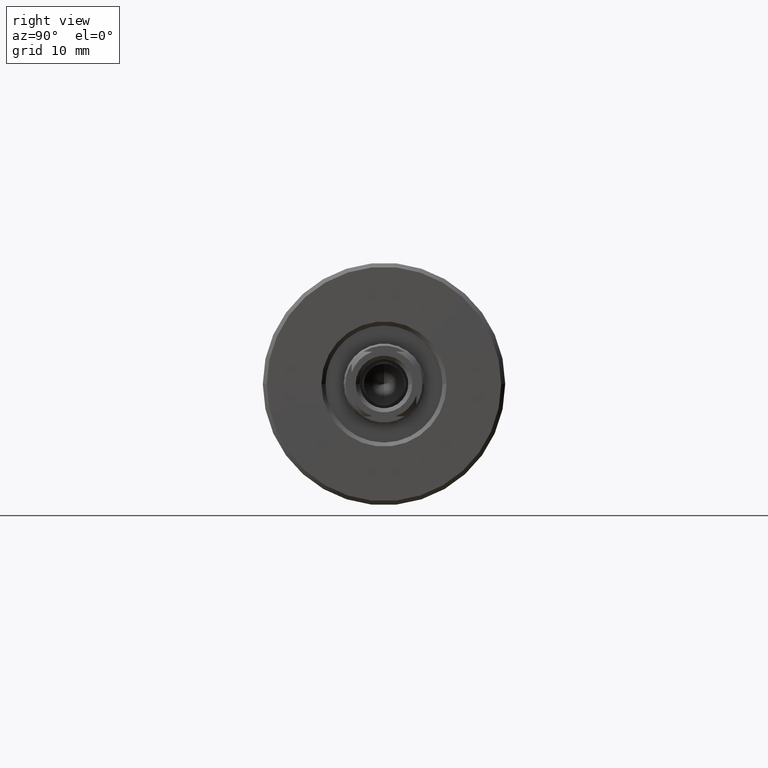
[diagram: clean part render]
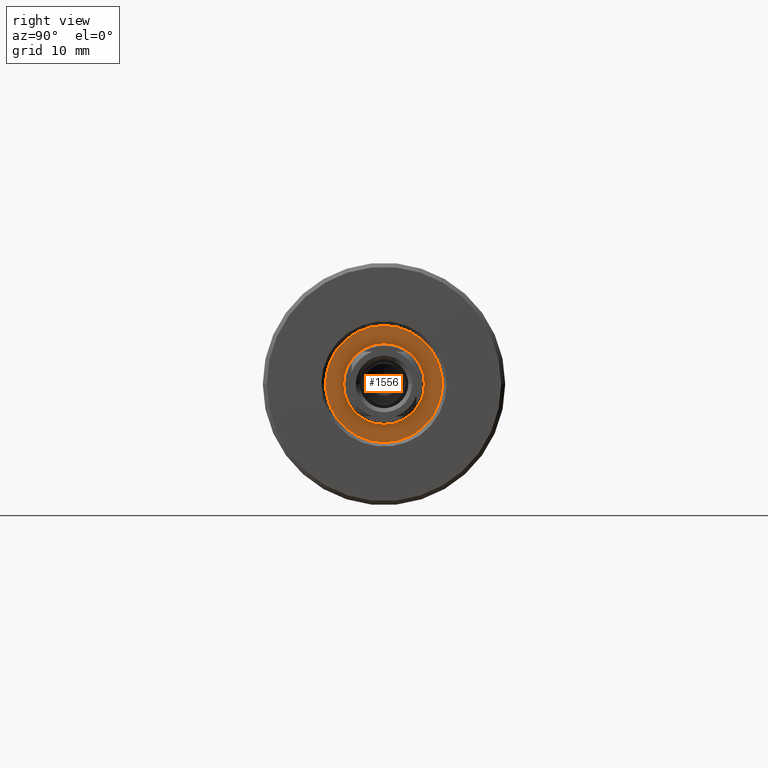
[diagram: same view with one face highlighted and labeled with its STEP entity id]
A machine part, right view. The second image highlights one B-rep face of the part: STEP entity #1556.
In plain terms, the highlighted planar face has unit normal (1, 0, 0).
Its self-contained STEP definition (entity closure, byte-faithful):
#100 = ORIENTED_EDGE ( 'NONE', *, *, #946, .T. ) ;
#137 = DIRECTION ( 'NONE',  ( 0.000000000000000000, 0.000000000000000000, -1.000000000000000000 ) ) ;
#146 = ORIENTED_EDGE ( 'NONE', *, *, #2199, .F. ) ;
#147 = CARTESIAN_POINT ( 'NONE',  ( -1.500000000000000000, 0.000000000000000000, 0.000000000000000000 ) ) ;
#198 = CIRCLE ( 'NONE', #245, 7.250000000000000000 ) ;
#214 = DIRECTION ( 'NONE',  ( 1.000000000000000000, 0.000000000000000000, 0.000000000000000000 ) ) ;
#226 = CARTESIAN_POINT ( 'NONE',  ( -1.500000000000000000, 6.123233995736766282E-16, 5.000000000000000000 ) ) ;
#245 = AXIS2_PLACEMENT_3D ( 'NONE', #913, #214, #1073 ) ;
#298 = CARTESIAN_POINT ( 'NONE',  ( -1.500000000000000000, 0.000000000000000000, 0.000000000000000000 ) ) ;
#378 = DIRECTION ( 'NONE',  ( 0.000000000000000000, 0.000000000000000000, -1.000000000000000000 ) ) ;
#452 = VERTEX_POINT ( 'NONE', #575 ) ;
#491 = ORIENTED_EDGE ( 'NONE', *, *, #1912, .F. ) ;
#522 = AXIS2_PLACEMENT_3D ( 'NONE', #298, #706, #1824 ) ;
#575 = CARTESIAN_POINT ( 'NONE',  ( -1.500000000000000000, 0.000000000000000000, -5.000000000000000000 ) ) ;
#706 = DIRECTION ( 'NONE',  ( 1.000000000000000000, 0.000000000000000000, 0.000000000000000000 ) ) ;
#719 = DIRECTION ( 'NONE',  ( 0.000000000000000000, 0.000000000000000000, -1.000000000000000000 ) ) ;
#722 = AXIS2_PLACEMENT_3D ( 'NONE', #1087, #2404, #137 ) ;
#754 = VERTEX_POINT ( 'NONE', #851 ) ;
#798 = AXIS2_PLACEMENT_3D ( 'NONE', #944, #1514, #378 ) ;
#851 = CARTESIAN_POINT ( 'NONE',  ( -1.500000000000000000, 8.878689293818310074E-16, 7.250000000000000000 ) ) ;
#909 = DIRECTION ( 'NONE',  ( 1.000000000000000000, 0.000000000000000000, 0.000000000000000000 ) ) ;
#913 = CARTESIAN_POINT ( 'NONE',  ( -1.500000000000000000, 0.000000000000000000, 0.000000000000000000 ) ) ;
#935 = ORIENTED_EDGE ( 'NONE', *, *, #2210, .T. ) ;
#944 = CARTESIAN_POINT ( 'NONE',  ( -1.500000000000000000, 0.000000000000000000, 0.000000000000000000 ) ) ;
#946 = EDGE_CURVE ( 'NONE', #2433, #754, #198, .T. ) ;
#976 = VERTEX_POINT ( 'NONE', #226 ) ;
#1037 = EDGE_LOOP ( 'NONE', ( #100, #935 ) ) ;
#1073 = DIRECTION ( 'NONE',  ( 0.000000000000000000, 0.000000000000000000, -1.000000000000000000 ) ) ;
#1087 = CARTESIAN_POINT ( 'NONE',  ( -1.500000000000000000, 0.000000000000000000, 0.000000000000000000 ) ) ;
#1172 = EDGE_LOOP ( 'NONE', ( #146, #491 ) ) ;
#1368 = CIRCLE ( 'NONE', #1689, 5.000000000000000000 ) ;
#1514 = DIRECTION ( 'NONE',  ( 1.000000000000000000, 0.000000000000000000, 0.000000000000000000 ) ) ;
#1556 = ADVANCED_FACE ( 'NONE', ( #2089, #2443 ), #1720, .T. ) ;
#1689 = AXIS2_PLACEMENT_3D ( 'NONE', #147, #909, #719 ) ;
#1720 = PLANE ( 'NONE',  #798 ) ;
#1824 = DIRECTION ( 'NONE',  ( 0.000000000000000000, 0.000000000000000000, -1.000000000000000000 ) ) ;
#1903 = CARTESIAN_POINT ( 'NONE',  ( -1.500000000000000000, 0.000000000000000000, -7.250000000000000000 ) ) ;
#1912 = EDGE_CURVE ( 'NONE', #976, #452, #1368, .T. ) ;
#1968 = CIRCLE ( 'NONE', #722, 7.250000000000000000 ) ;
#2047 = CIRCLE ( 'NONE', #522, 5.000000000000000000 ) ;
#2089 = FACE_BOUND ( 'NONE', #1172, .T. ) ;
#2199 = EDGE_CURVE ( 'NONE', #452, #976, #2047, .T. ) ;
#2210 = EDGE_CURVE ( 'NONE', #754, #2433, #1968, .T. ) ;
#2404 = DIRECTION ( 'NONE',  ( 1.000000000000000000, 0.000000000000000000, 0.000000000000000000 ) ) ;
#2433 = VERTEX_POINT ( 'NONE', #1903 ) ;
#2443 = FACE_OUTER_BOUND ( 'NONE', #1037, .T. ) ;